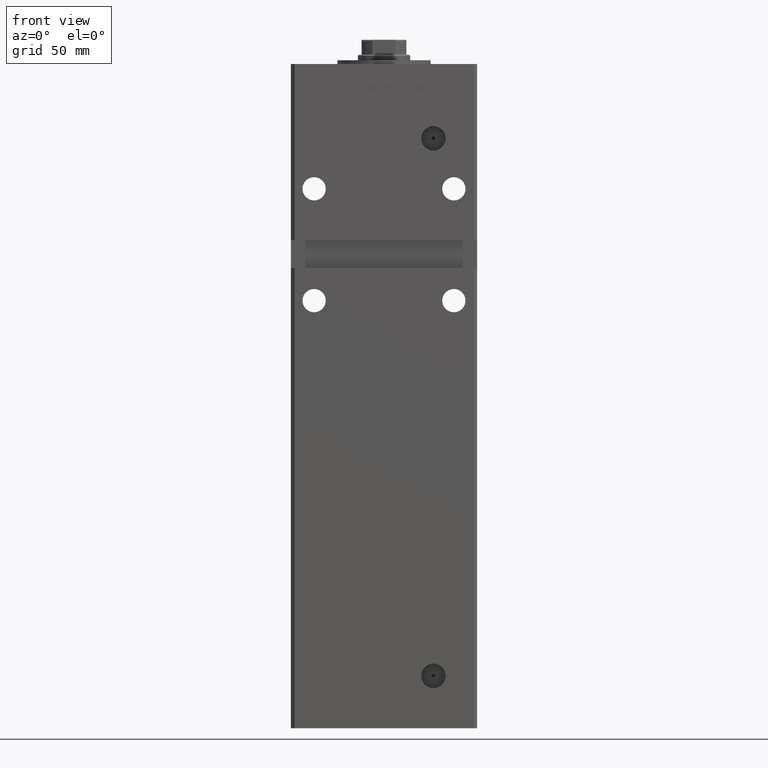
[diagram: clean part render]
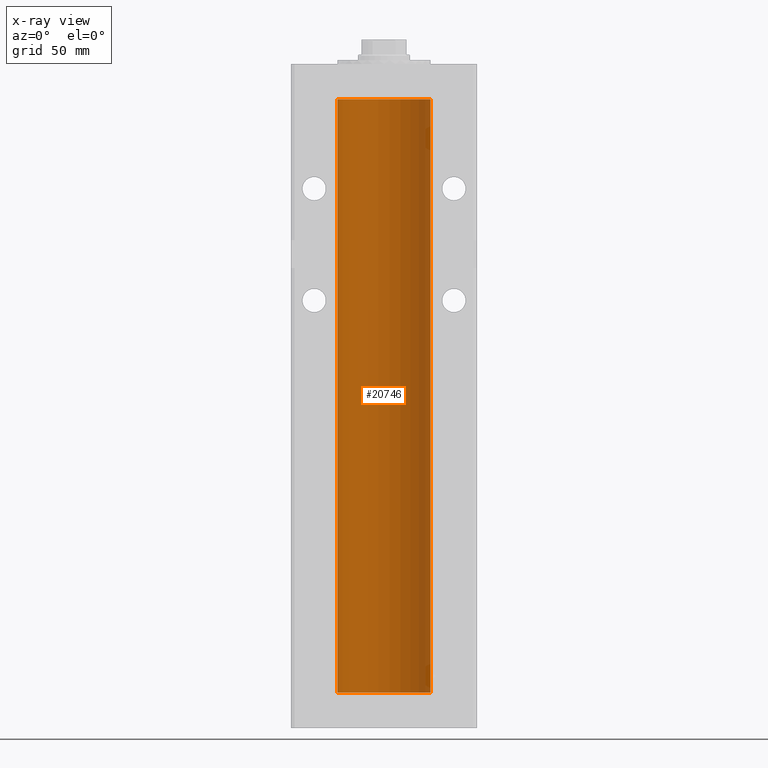
[diagram: x-ray — body ghosted, one internal face saturated and labeled with its STEP entity id]
A machine part, front view, then the same camera in x-ray: the body is ghosted and one INTERNAL B-rep face — a face not visible from any outside direction — is saturated and labeled: STEP entity #20746.
In plain terms, the highlighted cylindrical surface (partial cylindrical patch) has radius 25 mm, axis along (-0, -0, -1).
Its self-contained STEP definition (entity closure, byte-faithful):
#4158 = ORIENTED_EDGE ( 'NONE', *, *, #6344, .F. ) ;
#4823 = CARTESIAN_POINT ( 'NONE',  ( 25.00000000000000000, 3.061616997868383043E-15, 318.5000000000000000 ) ) ;
#5582 = CARTESIAN_POINT ( 'NONE',  ( 0.000000000000000000, 0.000000000000000000, 318.5000000000000000 ) ) ;
#6344 = EDGE_CURVE ( 'NONE', #16964, #8502, #44770, .T. ) ;
#7792 = CARTESIAN_POINT ( 'NONE',  ( 25.00000000000000000, 3.061616997868383043E-15, 0.000000000000000000 ) ) ;
#8502 = VERTEX_POINT ( 'NONE', #12415 ) ;
#9288 = DIRECTION ( 'NONE',  ( -0.000000000000000000, -0.000000000000000000, -1.000000000000000000 ) ) ;
#11110 = VECTOR ( 'NONE', #29072, 1000.000000000000000 ) ;
#12415 = CARTESIAN_POINT ( 'NONE',  ( -25.00000000000000000, 0.000000000000000000, 0.000000000000000000 ) ) ;
#12662 = CARTESIAN_POINT ( 'NONE',  ( 25.00000000000000000, 3.061616997868383043E-15, 318.5000000000000000 ) ) ;
#13646 = DIRECTION ( 'NONE',  ( -0.000000000000000000, 0.000000000000000000, 1.000000000000000000 ) ) ;
#14560 = VERTEX_POINT ( 'NONE', #4823 ) ;
#16964 = VERTEX_POINT ( 'NONE', #7792 ) ;
#16967 = CARTESIAN_POINT ( 'NONE',  ( 0.000000000000000000, 0.000000000000000000, 318.5000000000000000 ) ) ;
#17935 = CIRCLE ( 'NONE', #52253, 25.00000000000000000 ) ;
#18467 = AXIS2_PLACEMENT_3D ( 'NONE', #16967, #35863, #36131 ) ;
#19731 = FACE_OUTER_BOUND ( 'NONE', #49814, .T. ) ;
#20746 = ADVANCED_FACE ( 'NONE', ( #19731 ), #29338, .F. ) ;
#21953 = CARTESIAN_POINT ( 'NONE',  ( 0.000000000000000000, 0.000000000000000000, 0.000000000000000000 ) ) ;
#25463 = DIRECTION ( 'NONE',  ( 1.000000000000000000, 0.000000000000000000, 0.000000000000000000 ) ) ;
#25942 = LINE ( 'NONE', #41797, #45253 ) ;
#26737 = AXIS2_PLACEMENT_3D ( 'NONE', #21953, #49913, #25463 ) ;
#26746 = EDGE_CURVE ( 'NONE', #39244, #8502, #25942, .T. ) ;
#29072 = DIRECTION ( 'NONE',  ( -0.000000000000000000, -0.000000000000000000, -1.000000000000000000 ) ) ;
#29338 = CYLINDRICAL_SURFACE ( 'NONE', #18467, 25.00000000000000000 ) ;
#30049 = DIRECTION ( 'NONE',  ( 1.000000000000000000, 0.000000000000000000, 0.000000000000000000 ) ) ;
#32840 = LINE ( 'NONE', #12662, #11110 ) ;
#35840 = EDGE_CURVE ( 'NONE', #14560, #39244, #17935, .T. ) ;
#35863 = DIRECTION ( 'NONE',  ( -0.000000000000000000, -0.000000000000000000, -1.000000000000000000 ) ) ;
#36131 = DIRECTION ( 'NONE',  ( -1.000000000000000000, 0.000000000000000000, 0.000000000000000000 ) ) ;
#38152 = ORIENTED_EDGE ( 'NONE', *, *, #26746, .T. ) ;
#39244 = VERTEX_POINT ( 'NONE', #52723 ) ;
#41797 = CARTESIAN_POINT ( 'NONE',  ( -25.00000000000000000, 0.000000000000000000, 318.5000000000000000 ) ) ;
#44770 = CIRCLE ( 'NONE', #26737, 25.00000000000000000 ) ;
#45253 = VECTOR ( 'NONE', #9288, 1000.000000000000000 ) ;
#45591 = ORIENTED_EDGE ( 'NONE', *, *, #50627, .F. ) ;
#49814 = EDGE_LOOP ( 'NONE', ( #45591, #52152, #38152, #4158 ) ) ;
#49913 = DIRECTION ( 'NONE',  ( -0.000000000000000000, 0.000000000000000000, 1.000000000000000000 ) ) ;
#50627 = EDGE_CURVE ( 'NONE', #14560, #16964, #32840, .T. ) ;
#52152 = ORIENTED_EDGE ( 'NONE', *, *, #35840, .T. ) ;
#52253 = AXIS2_PLACEMENT_3D ( 'NONE', #5582, #13646, #30049 ) ;
#52723 = CARTESIAN_POINT ( 'NONE',  ( -25.00000000000000000, 0.000000000000000000, 318.5000000000000000 ) ) ;